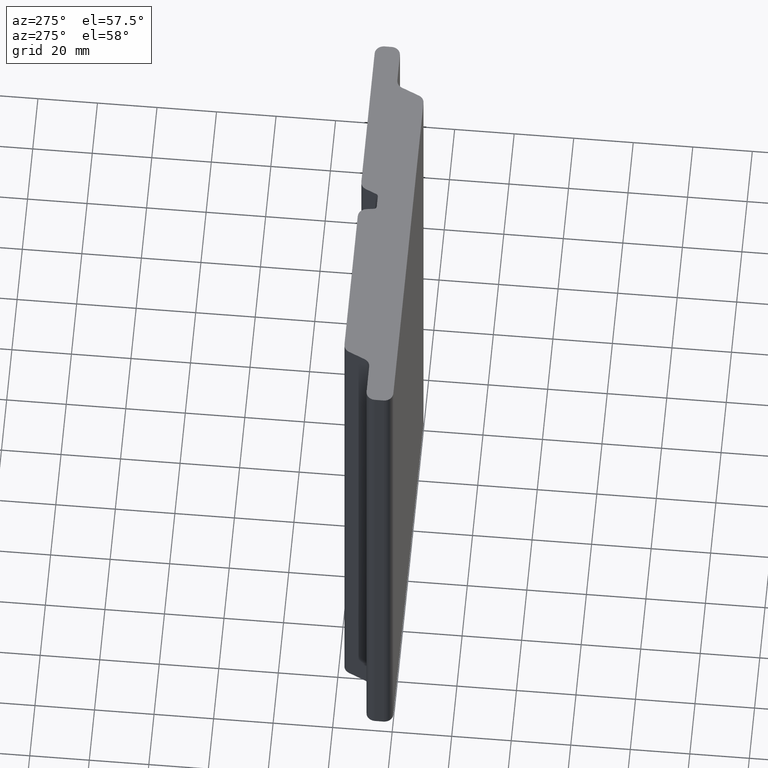
[diagram: clean part render]
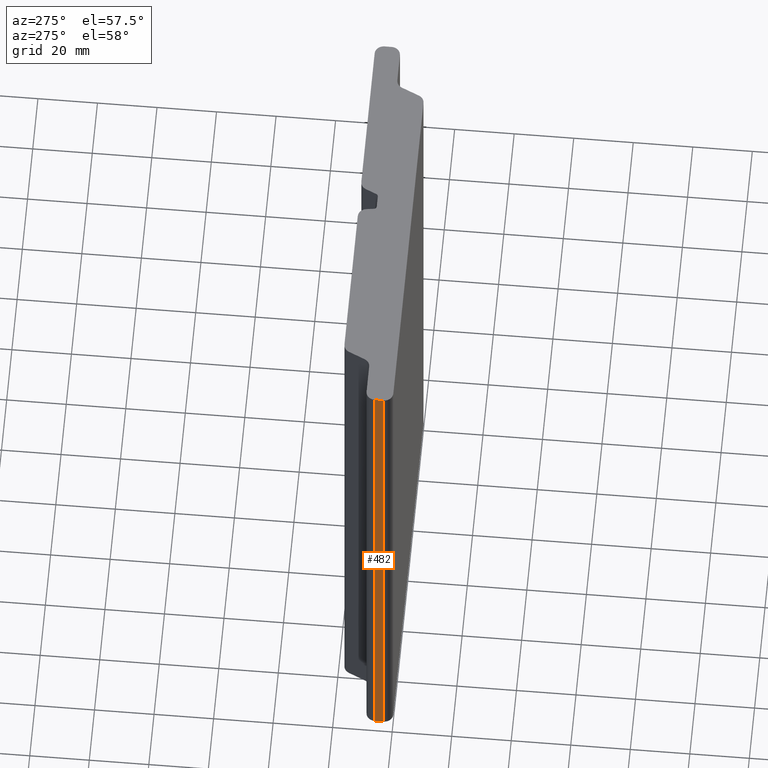
[diagram: same view with one face highlighted and labeled with its STEP entity id]
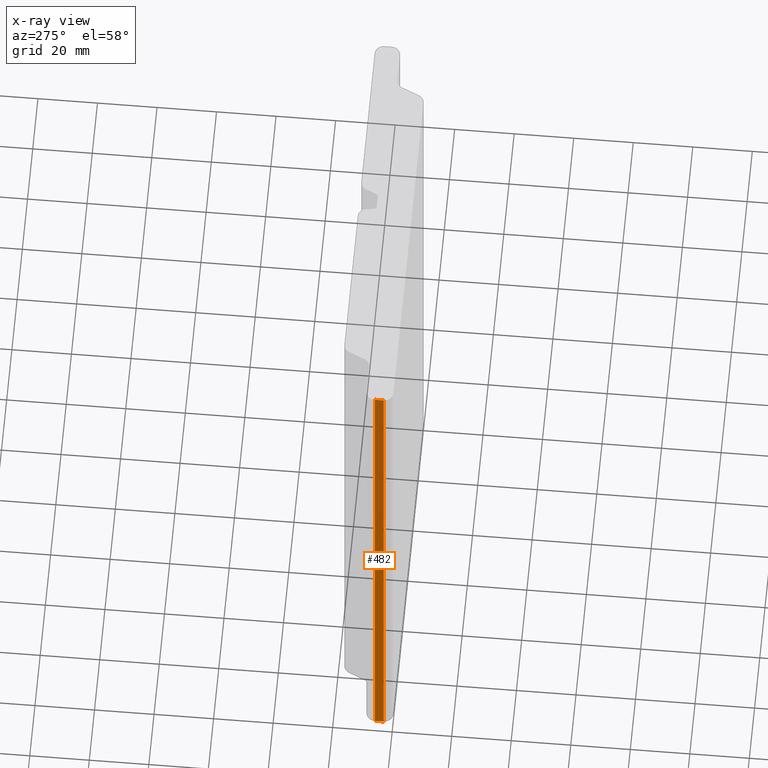
[diagram: x-ray of the same camera — body ghosted, the highlighted face saturated]
A machine part, auxiliary view. The second image highlights one B-rep face of the part: STEP entity #482.
The next image is the same camera in x-ray: the body ghosted, the highlighted face saturated — about 0% of this face is hidden behind the body in this view.
In plain terms, the highlighted planar face has unit normal (-1, -0, 0).
Its self-contained STEP definition (entity closure, byte-faithful):
#17=PLANE('',#528);
#34=FACE_OUTER_BOUND('',#60,.T.);
#60=EDGE_LOOP('',(#341,#342,#343,#344));
#90=LINE('',#750,#138);
#91=LINE('',#753,#139);
#92=LINE('',#755,#140);
#93=LINE('',#756,#141);
#138=VECTOR('',#600,10.);
#139=VECTOR('',#603,10.);
#140=VECTOR('',#604,10.);
#141=VECTOR('',#605,10.);
#211=VERTEX_POINT('',#746);
#212=VERTEX_POINT('',#748);
#213=VERTEX_POINT('',#752);
#214=VERTEX_POINT('',#754);
#264=EDGE_CURVE('',#211,#212,#90,.T.);
#265=EDGE_CURVE('',#211,#213,#91,.T.);
#266=EDGE_CURVE('',#214,#212,#92,.T.);
#267=EDGE_CURVE('',#213,#214,#93,.T.);
#341=ORIENTED_EDGE('',*,*,#265,.F.);
#342=ORIENTED_EDGE('',*,*,#264,.T.);
#343=ORIENTED_EDGE('',*,*,#266,.F.);
#344=ORIENTED_EDGE('',*,*,#267,.F.);
#482=ADVANCED_FACE('',(#34),#17,.T.);
#528=AXIS2_PLACEMENT_3D('',#751,#601,#602);
#600=DIRECTION('',(0.,0.,1.));
#601=DIRECTION('center_axis',(-1.,-7.60872846216231E-13,0.));
#602=DIRECTION('ref_axis',(7.60872846216231E-13,-1.,0.));
#603=DIRECTION('',(-7.60872846216231E-13,1.,0.));
#604=DIRECTION('',(7.60872846216231E-13,-1.,0.));
#605=DIRECTION('',(0.,0.,1.));
#746=CARTESIAN_POINT('',(-78.5033344440853,3.0000000000364,0.));
#748=CARTESIAN_POINT('',(-78.5033344440853,3.0000000000364,200.));
#750=CARTESIAN_POINT('',(-78.5033344440853,3.0000000000364,0.));
#751=CARTESIAN_POINT('Origin',(-78.5033344440876,6.00000000001094,0.));
#752=CARTESIAN_POINT('',(-78.5033344440876,6.00000000001094,0.));
#753=CARTESIAN_POINT('',(-78.5033344440853,3.0000000000364,0.));
#754=CARTESIAN_POINT('',(-78.5033344440876,6.00000000001094,200.));
#755=CARTESIAN_POINT('',(-78.5033344440853,3.0000000000364,200.));
#756=CARTESIAN_POINT('',(-78.5033344440876,6.00000000001094,0.));